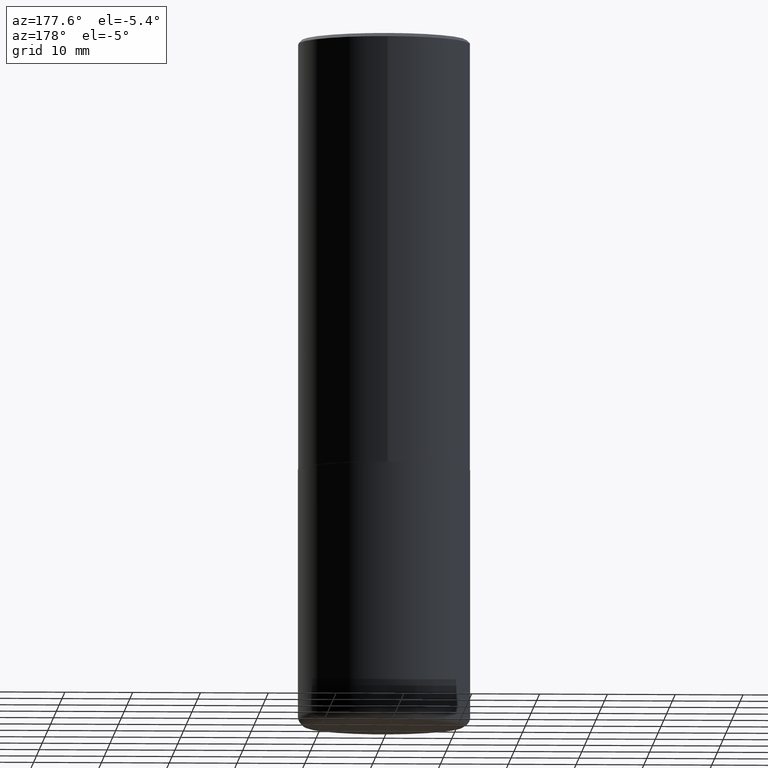
[diagram: clean part render]
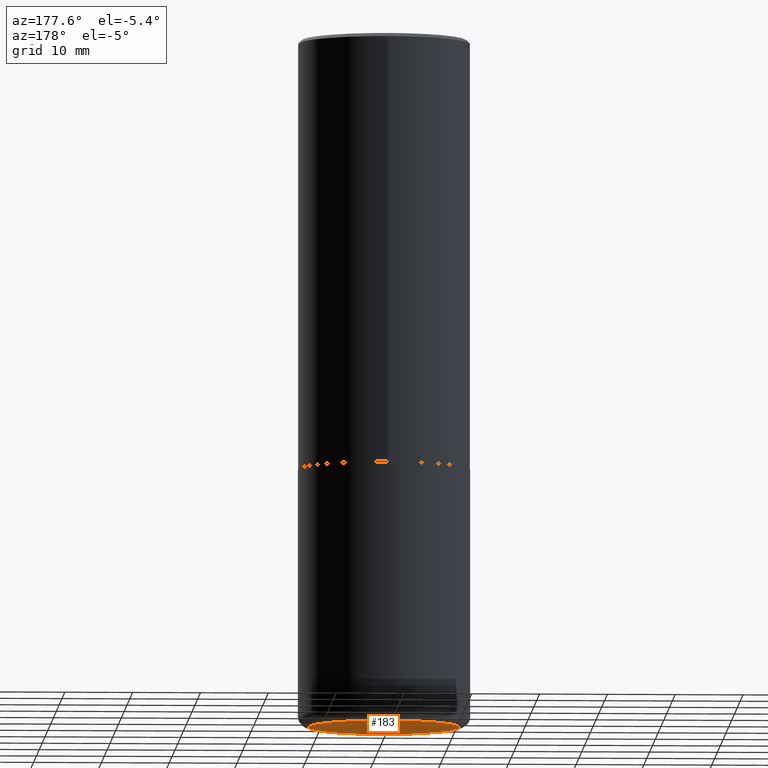
[diagram: same view with one face highlighted and labeled with its STEP entity id]
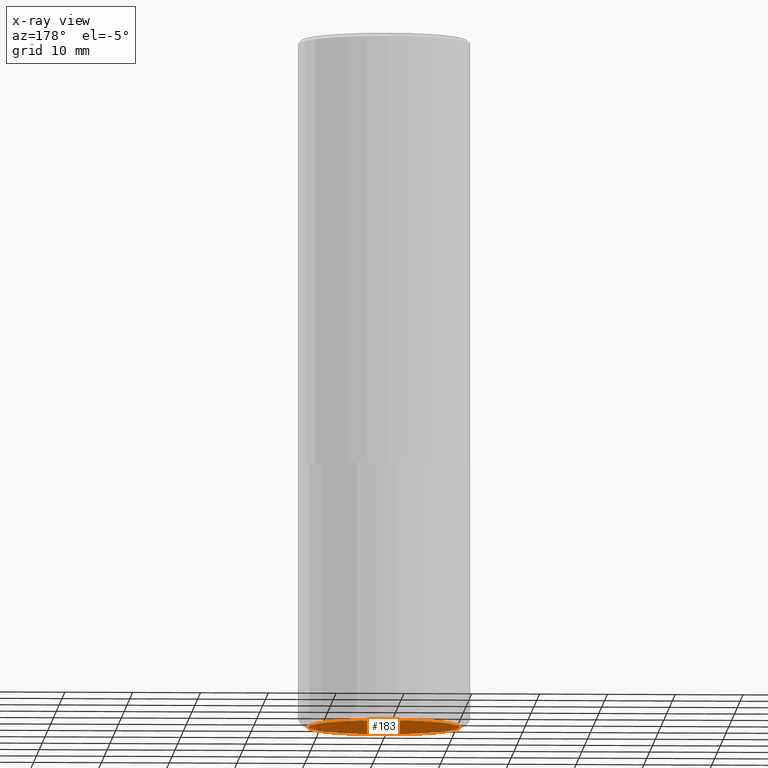
[diagram: x-ray of the same camera — body ghosted, the highlighted face saturated]
A machine part, auxiliary view. The second image highlights one B-rep face of the part: STEP entity #183.
The next image is the same camera in x-ray: the body ghosted, the highlighted face saturated — about 0% of this face is hidden behind the body in this view.
In plain terms, the highlighted planar face has unit normal (0, -0, -1).
Its self-contained STEP definition (entity closure, byte-faithful):
#9 = AXIS2_PLACEMENT_3D ( 'NONE', #307, #410, #23 ) ;
#23 = DIRECTION ( 'NONE',  ( 1.000000000000000000, -6.982962677686266711E-15, 0.000000000000000000 ) ) ;
#25 = DIRECTION ( 'NONE',  ( -1.000000000000000000, 6.982962677686265922E-15, -4.876176775795935793E-29 ) ) ;
#40 = VERTEX_POINT ( 'NONE', #176 ) ;
#99 = ORIENTED_EDGE ( 'NONE', *, *, #250, .F. ) ;
#117 = CARTESIAN_POINT ( 'NONE',  ( 6.313440210036972125E-29, -1.893292170748942541E-14, -4.000000000000000000 ) ) ;
#119 = FACE_OUTER_BOUND ( 'NONE', #316, .T. ) ;
#130 = CIRCLE ( 'NONE', #9, 0.4400000000000000022 ) ;
#138 = AXIS2_PLACEMENT_3D ( 'NONE', #277, #246, #298 ) ;
#151 = DIRECTION ( 'NONE',  ( 2.438088387897960049E-29, -3.491481338843145188E-15, -1.000000000000000000 ) ) ;
#167 = AXIS2_PLACEMENT_3D ( 'NONE', #117, #151, #25 ) ;
#176 = CARTESIAN_POINT ( 'NONE',  ( -0.4400000000000000022, -1.052163005713481985E-14, -4.000000000000000888 ) ) ;
#183 = ADVANCED_FACE ( 'NONE', ( #119 ), #275, .T. ) ;
#216 = CARTESIAN_POINT ( 'NONE',  ( 0.4400000000000000022, -1.703842893355454063E-14, -4.000000000000000888 ) ) ;
#229 = VERTEX_POINT ( 'NONE', #216 ) ;
#246 = DIRECTION ( 'NONE',  ( -2.445468806185136597E-29, 3.491481338843145583E-15, 1.000000000000000000 ) ) ;
#250 = EDGE_CURVE ( 'NONE', #229, #40, #306, .T. ) ;
#259 = ORIENTED_EDGE ( 'NONE', *, *, #318, .F. ) ;
#275 = PLANE ( 'NONE',  #167 ) ;
#277 = CARTESIAN_POINT ( 'NONE',  ( 9.781875224740547508E-29, -1.396592535537258391E-14, -4.000000000000000888 ) ) ;
#298 = DIRECTION ( 'NONE',  ( 1.000000000000000000, -6.982962677686266711E-15, 0.000000000000000000 ) ) ;
#306 = CIRCLE ( 'NONE', #138, 0.4400000000000000022 ) ;
#307 = CARTESIAN_POINT ( 'NONE',  ( 9.781875224740547508E-29, -1.396592535537258391E-14, -4.000000000000000888 ) ) ;
#316 = EDGE_LOOP ( 'NONE', ( #99, #259 ) ) ;
#318 = EDGE_CURVE ( 'NONE', #40, #229, #130, .T. ) ;
#410 = DIRECTION ( 'NONE',  ( -2.445468806185136597E-29, 3.491481338843145583E-15, 1.000000000000000000 ) ) ;